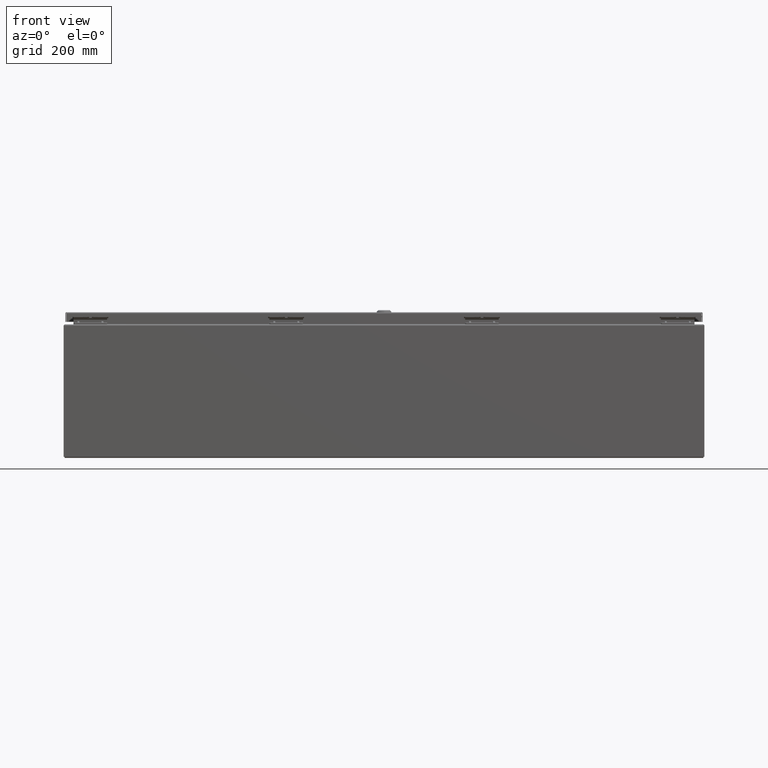
[diagram: clean part render]
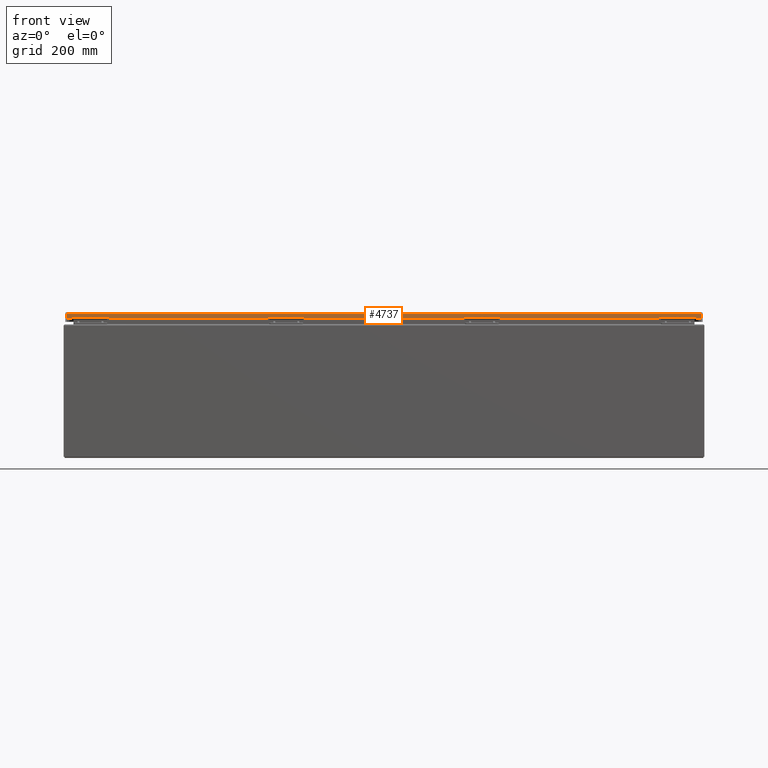
[diagram: same view with one face highlighted and labeled with its STEP entity id]
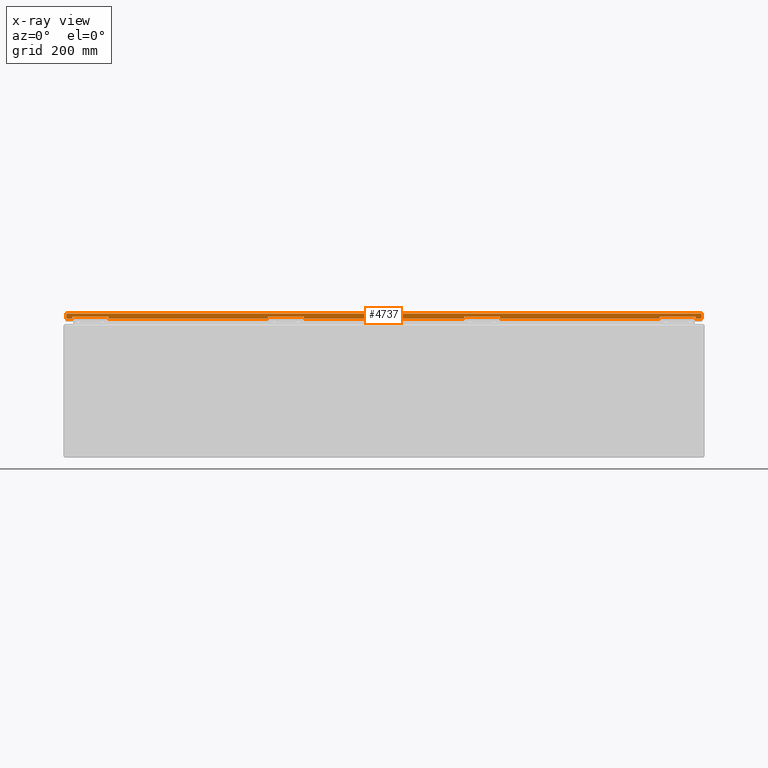
[diagram: x-ray of the same camera — body ghosted, the highlighted face saturated]
A machine part, front view. The second image highlights one B-rep face of the part: STEP entity #4737.
The next image is the same camera in x-ray: the body ghosted, the highlighted face saturated — about 0% of this face is hidden behind the body in this view.
In plain terms, the highlighted planar face has unit normal (-0, 1, -0).
Its self-contained STEP definition (entity closure, byte-faithful):
#4506=CARTESIAN_POINT('',(23.874999999999982,29.864999999999991,0.480000000000010));
#4507=VERTEX_POINT('',#4506);
#4514=CARTESIAN_POINT('',(23.874999999999986,29.864999999999991,0.355000000000002));
#4515=VERTEX_POINT('',#4514);
#4516=CARTESIAN_POINT('',(23.874999999999982,29.864999999999991,0.355000000000002));
#4517=DIRECTION('',(0.0,0.0,1.0));
#4518=VECTOR('',#4517,0.125000000000008);
#4519=LINE('',#4516,#4518);
#4520=EDGE_CURVE('',#4515,#4507,#4519,.T.);
#4545=CARTESIAN_POINT('',(23.874999999999982,32.551999999999992,0.355000000000002));
#4546=VERTEX_POINT('',#4545);
#4547=CARTESIAN_POINT('',(23.874999999999986,32.551999999999992,0.355000000000002));
#4548=DIRECTION('',(0.0,-1.0,0.0));
#4549=VECTOR('',#4548,2.687000000000001);
#4550=LINE('',#4547,#4549);
#4551=EDGE_CURVE('',#4546,#4515,#4550,.T.);
#4576=CARTESIAN_POINT('',(23.874999999999982,32.551999999999992,0.480000000000010));
#4577=VERTEX_POINT('',#4576);
#4578=CARTESIAN_POINT('',(23.874999999999982,32.551999999999992,0.480000000000010));
#4579=DIRECTION('',(0.0,0.0,-1.0));
#4580=VECTOR('',#4579,0.125000000000008);
#4581=LINE('',#4578,#4580);
#4582=EDGE_CURVE('',#4577,#4546,#4581,.T.);
#4593=CARTESIAN_POINT('',(23.874999999999986,23.875000000000011,0.366485738553100));
#4594=DIRECTION('',(-1.0,0.0,0.0));
#4595=DIRECTION('',(0.0,0.0,1.0));
#4596=AXIS2_PLACEMENT_3D('',#4593,#4594,#4595);
#4597=PLANE('',#4596);
#4598=ORIENTED_EDGE('',*,*,#4582,.T.);
#4599=ORIENTED_EDGE('',*,*,#4551,.T.);
#4600=ORIENTED_EDGE('',*,*,#4520,.T.);
#4601=CARTESIAN_POINT('',(23.874999999999986,17.885800000000007,0.480000000000006));
#4602=VERTEX_POINT('',#4601);
#4603=CARTESIAN_POINT('',(23.874999999999986,29.864999999999995,0.480000000000009));
#4604=DIRECTION('',(0.0,-1.0,0.0));
#4605=VECTOR('',#4604,11.979199999999988);
#4606=LINE('',#4603,#4605);
#4607=EDGE_CURVE('',#4507,#4602,#4606,.T.);
#4608=ORIENTED_EDGE('',*,*,#4607,.T.);
#4609=CARTESIAN_POINT('',(23.874999999999986,17.885800000000007,0.355000000000000));
#4610=VERTEX_POINT('',#4609);
#4611=CARTESIAN_POINT('',(23.874999999999986,17.885800000000007,0.480000000000006));
#4612=DIRECTION('',(0.0,0.0,-1.0));
#4613=VECTOR('',#4612,0.125000000000006);
#4614=LINE('',#4611,#4613);
#4615=EDGE_CURVE('',#4602,#4610,#4614,.T.);
#4616=ORIENTED_EDGE('',*,*,#4615,.T.);
#4617=CARTESIAN_POINT('',(23.874999999999989,15.198800000000006,0.355000000000001));
#4618=VERTEX_POINT('',#4617);
#4619=CARTESIAN_POINT('',(23.874999999999986,17.885800000000007,0.355000000000000));
#4620=DIRECTION('',(0.0,-1.0,0.0));
#4621=VECTOR('',#4620,2.687000000000001);
#4622=LINE('',#4619,#4621);
#4623=EDGE_CURVE('',#4610,#4618,#4622,.T.);
#4624=ORIENTED_EDGE('',*,*,#4623,.T.);
#4625=CARTESIAN_POINT('',(23.874999999999989,15.198800000000006,0.480000000000007));
#4626=VERTEX_POINT('',#4625);
#4627=CARTESIAN_POINT('',(23.874999999999989,15.198800000000006,0.355000000000001));
#4628=DIRECTION('',(0.0,0.0,1.0));
#4629=VECTOR('',#4628,0.125000000000006);
#4630=LINE('',#4627,#4629);
#4631=EDGE_CURVE('',#4618,#4626,#4630,.T.);
#4632=ORIENTED_EDGE('',*,*,#4631,.T.);
#4633=CARTESIAN_POINT('',(23.874999999999993,3.219000000000003,0.480000000000004));
#4634=VERTEX_POINT('',#4633);
#4635=CARTESIAN_POINT('',(23.874999999999989,15.198800000000006,0.480000000000006));
#4636=DIRECTION('',(0.0,-1.0,0.0));
#4637=VECTOR('',#4636,11.979800000000003);
#4638=LINE('',#4635,#4637);
#4639=EDGE_CURVE('',#4626,#4634,#4638,.T.);
#4640=ORIENTED_EDGE('',*,*,#4639,.T.);
#4641=CARTESIAN_POINT('',(23.874999999999993,3.219000000000003,0.355000000000004));
#4642=VERTEX_POINT('',#4641);
#4643=CARTESIAN_POINT('',(23.874999999999993,3.219000000000003,0.480000000000004));
#4644=DIRECTION('',(0.0,0.0,-1.0));
#4645=VECTOR('',#4644,0.125000000000000);
#4646=LINE('',#4643,#4645);
#4647=EDGE_CURVE('',#4634,#4642,#4646,.T.);
#4648=ORIENTED_EDGE('',*,*,#4647,.T.);
#4649=CARTESIAN_POINT('',(23.874999999999993,0.532000000000003,0.355000000000004));
#4650=VERTEX_POINT('',#4649);
#4651=CARTESIAN_POINT('',(23.874999999999993,3.219000000000003,0.355000000000004));
#4652=DIRECTION('',(0.0,-1.0,0.0));
#4653=VECTOR('',#4652,2.686999999999999);
#4654=LINE('',#4651,#4653);
#4655=EDGE_CURVE('',#4642,#4650,#4654,.T.);
#4656=ORIENTED_EDGE('',*,*,#4655,.T.);
#4657=CARTESIAN_POINT('',(23.874999999999993,0.532000000000003,0.480000000000004));
#4658=VERTEX_POINT('',#4657);
#4659=CARTESIAN_POINT('',(23.874999999999993,0.532000000000004,0.355000000000004));
#4660=DIRECTION('',(0.0,0.0,1.0));
#4661=VECTOR('',#4660,0.125000000000000);
#4662=LINE('',#4659,#4661);
#4663=EDGE_CURVE('',#4650,#4658,#4662,.T.);
#4664=ORIENTED_EDGE('',*,*,#4663,.T.);
#4665=CARTESIAN_POINT('',(23.874999999999993,0.085048543456043,0.480000000000010));
#4666=VERTEX_POINT('',#4665);
#4667=CARTESIAN_POINT('',(23.874999999999993,0.532000000000002,0.480000000000004));
#4668=DIRECTION('',(0.0,-1.0,0.0));
#4669=VECTOR('',#4668,0.446951456543959);
#4670=LINE('',#4667,#4669);
#4671=EDGE_CURVE('',#4658,#4666,#4670,.T.);
#4672=ORIENTED_EDGE('',*,*,#4671,.T.);
#4673=CARTESIAN_POINT('',(23.874999999999993,0.085048543456041,0.105250000000007));
#4674=VERTEX_POINT('',#4673);
#4675=CARTESIAN_POINT('',(23.874999999999986,0.085048543456039,0.105250000000007));
#4676=DIRECTION('',(0.0,0.0,1.0));
#4677=VECTOR('',#4676,0.374750000000003);
#4678=LINE('',#4675,#4677);
#4679=EDGE_CURVE('',#4674,#4666,#4678,.T.);
#4680=ORIENTED_EDGE('',*,*,#4679,.F.);
#4681=CARTESIAN_POINT('',(23.874999999999982,47.664951456543974,0.105249999999996));
#4682=VERTEX_POINT('',#4681);
#4683=CARTESIAN_POINT('',(23.874999999999993,0.085048543456043,0.105249999999998));
#4684=DIRECTION('',(0.0,1.0,0.0));
#4685=VECTOR('',#4684,47.579902913087935);
#4686=LINE('',#4683,#4685);
#4687=EDGE_CURVE('',#4674,#4682,#4686,.T.);
#4688=ORIENTED_EDGE('',*,*,#4687,.T.);
#4689=CARTESIAN_POINT('',(23.874999999999982,47.664951456543974,0.480000000000012));
#4690=VERTEX_POINT('',#4689);
#4691=CARTESIAN_POINT('',(23.874999999999979,47.664951456543974,0.480000000000012));
#4692=DIRECTION('',(0.0,0.0,-1.0));
#4693=VECTOR('',#4692,0.374750000000016);
#4694=LINE('',#4691,#4693);
#4695=EDGE_CURVE('',#4690,#4682,#4694,.T.);
#4696=ORIENTED_EDGE('',*,*,#4695,.F.);
#4697=CARTESIAN_POINT('',(23.874999999999982,47.217999999999989,0.480000000000011));
#4698=VERTEX_POINT('',#4697);
#4699=CARTESIAN_POINT('',(23.874999999999979,47.664951456543974,0.480000000000012));
#4700=DIRECTION('',(0.0,-1.0,0.0));
#4701=VECTOR('',#4700,0.446951456543985);
#4702=LINE('',#4699,#4701);
#4703=EDGE_CURVE('',#4690,#4698,#4702,.T.);
#4704=ORIENTED_EDGE('',*,*,#4703,.T.);
#4705=CARTESIAN_POINT('',(23.874999999999982,47.217999999999989,0.355000000000003));
#4706=VERTEX_POINT('',#4705);
#4707=CARTESIAN_POINT('',(23.874999999999982,47.217999999999989,0.480000000000011));
#4708=DIRECTION('',(0.0,0.0,-1.0));
#4709=VECTOR('',#4708,0.125000000000009);
#4710=LINE('',#4707,#4709);
#4711=EDGE_CURVE('',#4698,#4706,#4710,.T.);
#4712=ORIENTED_EDGE('',*,*,#4711,.T.);
#4713=CARTESIAN_POINT('',(23.874999999999982,44.530999999999992,0.355000000000003));
#4714=VERTEX_POINT('',#4713);
#4715=CARTESIAN_POINT('',(23.874999999999979,47.217999999999989,0.355000000000003));
#4716=DIRECTION('',(0.0,-1.0,0.0));
#4717=VECTOR('',#4716,2.686999999999998);
#4718=LINE('',#4715,#4717);
#4719=EDGE_CURVE('',#4706,#4714,#4718,.T.);
#4720=ORIENTED_EDGE('',*,*,#4719,.T.);
#4721=CARTESIAN_POINT('',(23.874999999999982,44.530999999999992,0.480000000000011));
#4722=VERTEX_POINT('',#4721);
#4723=CARTESIAN_POINT('',(23.874999999999982,44.530999999999992,0.355000000000003));
#4724=DIRECTION('',(0.0,0.0,1.0));
#4725=VECTOR('',#4724,0.125000000000008);
#4726=LINE('',#4723,#4725);
#4727=EDGE_CURVE('',#4714,#4722,#4726,.T.);
#4728=ORIENTED_EDGE('',*,*,#4727,.T.);
#4729=CARTESIAN_POINT('',(23.874999999999982,44.530999999999992,0.480000000000011));
#4730=DIRECTION('',(0.0,-1.0,0.0));
#4731=VECTOR('',#4730,11.978999999999999);
#4732=LINE('',#4729,#4731);
#4733=EDGE_CURVE('',#4722,#4577,#4732,.T.);
#4734=ORIENTED_EDGE('',*,*,#4733,.T.);
#4735=EDGE_LOOP('',(#4598,#4599,#4600,#4608,#4616,#4624,#4632,#4640,#4648,#4656,#4664,#4672,#4680,#4688,#4696,#4704,#4712,#4720,#4728,#4734));
#4736=FACE_OUTER_BOUND('',#4735,.T.);
#4737=ADVANCED_FACE('',(#4736),#4597,.F.);